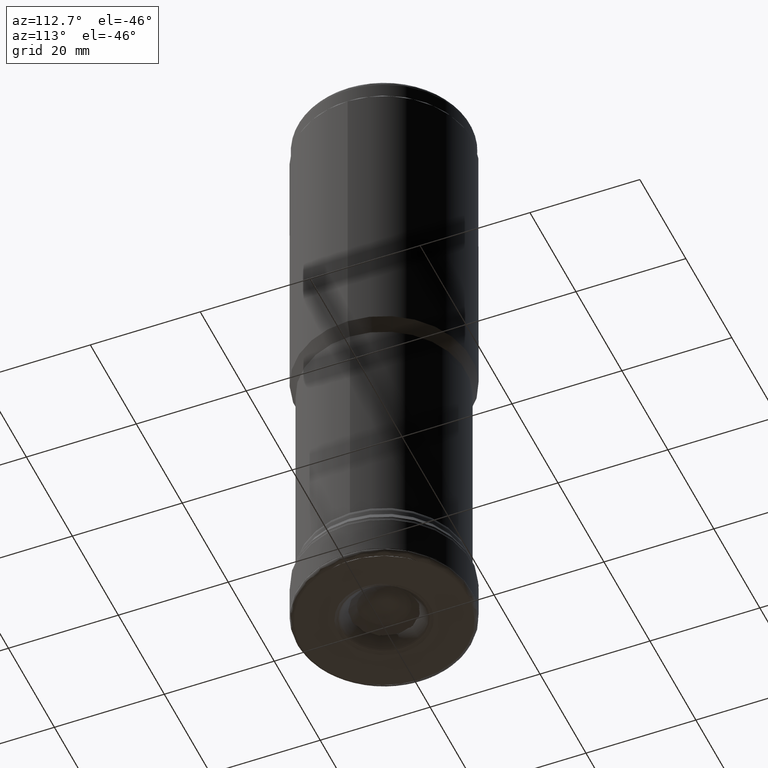
[diagram: clean part render]
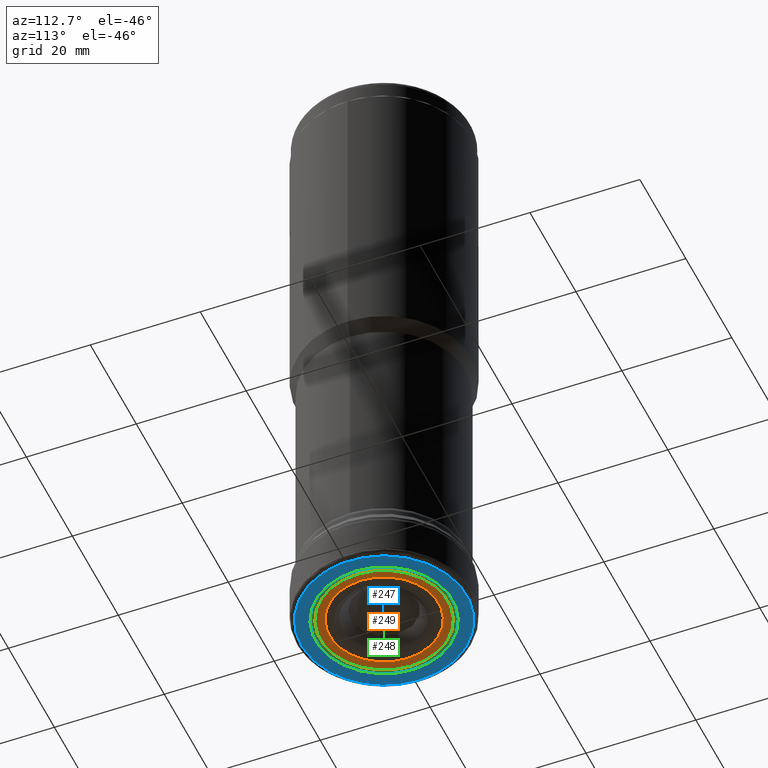
[diagram: same view with three faces highlighted in distinct colors, each labeled with its STEP entity id]
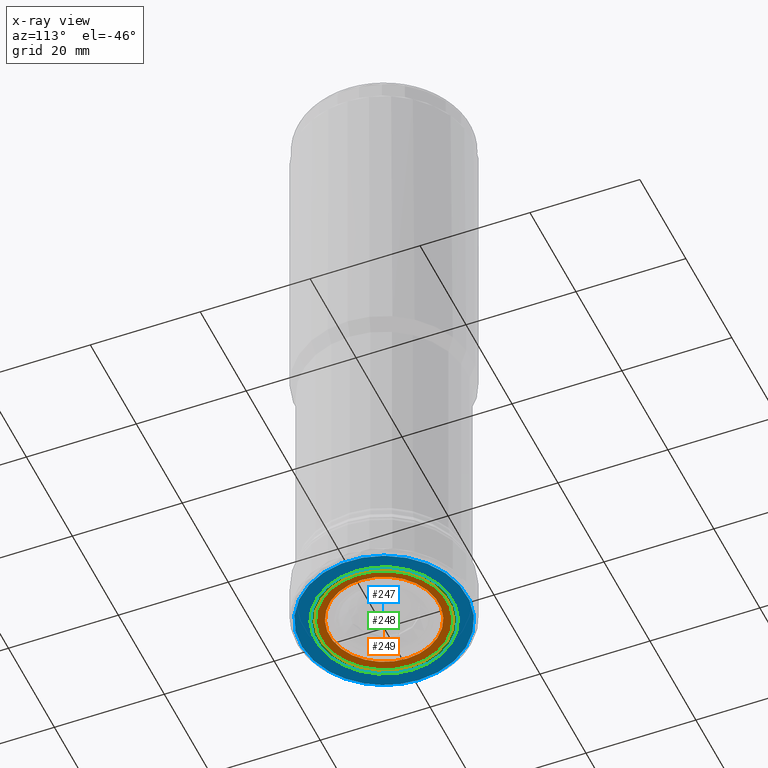
[diagram: x-ray of the same camera — body ghosted, the three highlighted faces saturated]
A machine part, auxiliary view with three faces highlighted in distinct colors.
The next image is the same camera in x-ray (body ghosted, the three faces saturated) — at least one of them is partly hidden behind the body in this view.
Their STEP definitions:

[orange] entity #249 — the highlighted face is a SurfaceOfRevolution surface.
#112=SURFACE_OF_REVOLUTION('',#952,#151);
#151=AXIS1_PLACEMENT('',#2190,#1158);
#249=ADVANCED_FACE('',(#353,#354),#112,.F.);
#353=FACE_BOUND('',#467,.T.);
#354=FACE_BOUND('',#468,.T.);
#467=EDGE_LOOP('',(#627));
#468=EDGE_LOOP('',(#628));
#627=ORIENTED_EDGE('',*,*,#813,.T.);
#628=ORIENTED_EDGE('',*,*,#814,.F.);
#733=VERTEX_POINT('',#2174);
#734=VERTEX_POINT('',#2183);
#813=EDGE_CURVE('',#733,#733,#862,.T.);
#814=EDGE_CURVE('',#734,#734,#863,.T.);
#862=CIRCLE('',#1026,11.6420137079246);
#863=CIRCLE('',#1027,9.94068885266798);
#952=B_SPLINE_CURVE_WITH_KNOTS('',5,(#2184,#2185,#2186,#2187,#2188,#2189),
 .UNSPECIFIED.,.F.,.F.,(6,6),(0.,1.),.UNSPECIFIED.);
#1026=AXIS2_PLACEMENT_3D('',#2173,#1153,#1154);
#1027=AXIS2_PLACEMENT_3D('',#2182,#1156,#1157);
#1153=DIRECTION('',(0.,0.,-1.));
#1154=DIRECTION('',(-1.,0.,0.));
#1156=DIRECTION('',(0.,0.,-1.));
#1157=DIRECTION('',(-1.,0.,0.));
#1158=DIRECTION('',(0.,0.,-1.));
#2173=CARTESIAN_POINT('',(0.,0.,0.0730724471815463));
#2174=CARTESIAN_POINT('',(-11.6420137079246,0.,0.0730724471815463));
#2182=CARTESIAN_POINT('',(0.,0.,0.257573474107855));
#2183=CARTESIAN_POINT('',(-9.94068885266798,0.,0.257573474107855));
#2184=CARTESIAN_POINT('',(-4.97034442633404,-8.60888907752723,0.257573474107855));
#2185=CARTESIAN_POINT('',(-5.14045022814163,-8.90352096892023,0.220184835990095));
#2186=CARTESIAN_POINT('',(-5.31057215064622,-9.19818078217947,0.183089528690482));
#2187=CARTESIAN_POINT('',(-5.48070684799947,-9.49286272212566,0.146228502387511));
#2188=CARTESIAN_POINT('',(-5.65085229849574,-9.78756328706189,0.10956555051383));
#2189=CARTESIAN_POINT('',(-5.82100685396234,-10.0822796222693,0.0730724471815463));
#2190=CARTESIAN_POINT('',(0.,0.,0.));

[blue] entity #247 — the highlighted face is a SurfaceOfRevolution surface.
#110=SURFACE_OF_REVOLUTION('',#950,#149);
#149=AXIS1_PLACEMENT('',#2172,#1152);
#247=ADVANCED_FACE('',(#349,#350),#110,.F.);
#349=FACE_BOUND('',#463,.T.);
#350=FACE_BOUND('',#464,.T.);
#463=EDGE_LOOP('',(#623));
#464=EDGE_LOOP('',(#624));
#623=ORIENTED_EDGE('',*,*,#811,.T.);
#624=ORIENTED_EDGE('',*,*,#812,.F.);
#731=VERTEX_POINT('',#2156);
#732=VERTEX_POINT('',#2165);
#811=EDGE_CURVE('',#731,#731,#860,.T.);
#812=EDGE_CURVE('',#732,#732,#861,.T.);
#860=CIRCLE('',#1024,15.090228059424);
#861=CIRCLE('',#1025,12.4554251770263);
#950=B_SPLINE_CURVE_WITH_KNOTS('',5,(#2166,#2167,#2168,#2169,#2170,#2171),
 .UNSPECIFIED.,.F.,.F.,(6,6),(0.,1.),.UNSPECIFIED.);
#1024=AXIS2_PLACEMENT_3D('',#2155,#1147,#1148);
#1025=AXIS2_PLACEMENT_3D('',#2164,#1150,#1151);
#1147=DIRECTION('',(0.,0.,-1.));
#1148=DIRECTION('',(-1.,0.,0.));
#1150=DIRECTION('',(0.,0.,-1.));
#1151=DIRECTION('',(-1.,0.,0.));
#1152=DIRECTION('',(0.,0.,-1.));
#2155=CARTESIAN_POINT('',(0.,0.,4.39446516387043E-14));
#2156=CARTESIAN_POINT('',(-15.090228059424,0.,4.39446516387043E-14));
#2164=CARTESIAN_POINT('',(0.,0.,0.0227797328222775));
#2165=CARTESIAN_POINT('',(-12.4554251770263,0.,0.0227797328222775));
#2166=CARTESIAN_POINT('',(-6.22771258851334,-10.7867146182413,0.0227797328223147));
#2167=CARTESIAN_POINT('',(-6.49116490826833,-11.2430274214288,0.0133574135511824));
#2168=CARTESIAN_POINT('',(-6.75463854865062,-11.699377153026,0.00631958713234938));
#2169=CARTESIAN_POINT('',(-7.01812620605018,-12.1557511628094,0.00171076251627194));
#2170=CARTESIAN_POINT('',(-7.28162063140434,-12.6121368950339,-0.00041692218495376));
#2171=CARTESIAN_POINT('',(-7.54511402971207,-13.0685208483619,4.39446516387043E-14));
#2172=CARTESIAN_POINT('',(0.,0.,0.));

[green] entity #248 — the highlighted face is a SurfaceOfRevolution surface.
#111=SURFACE_OF_REVOLUTION('',#951,#150);
#150=AXIS1_PLACEMENT('',#2181,#1155);
#248=ADVANCED_FACE('',(#351,#352),#111,.F.);
#351=FACE_BOUND('',#465,.T.);
#352=FACE_BOUND('',#466,.T.);
#465=EDGE_LOOP('',(#625));
#466=EDGE_LOOP('',(#626));
#625=ORIENTED_EDGE('',*,*,#812,.T.);
#626=ORIENTED_EDGE('',*,*,#813,.F.);
#732=VERTEX_POINT('',#2165);
#733=VERTEX_POINT('',#2174);
#812=EDGE_CURVE('',#732,#732,#861,.T.);
#813=EDGE_CURVE('',#733,#733,#862,.T.);
#861=CIRCLE('',#1025,12.4554251770263);
#862=CIRCLE('',#1026,11.6420137079246);
#951=B_SPLINE_CURVE_WITH_KNOTS('',5,(#2175,#2176,#2177,#2178,#2179,#2180),
 .UNSPECIFIED.,.F.,.F.,(6,6),(0.,1.),.UNSPECIFIED.);
#1025=AXIS2_PLACEMENT_3D('',#2164,#1150,#1151);
#1026=AXIS2_PLACEMENT_3D('',#2173,#1153,#1154);
#1150=DIRECTION('',(0.,0.,-1.));
#1151=DIRECTION('',(-1.,0.,0.));
#1153=DIRECTION('',(0.,0.,-1.));
#1154=DIRECTION('',(-1.,0.,0.));
#1155=DIRECTION('',(0.,0.,-1.));
#2164=CARTESIAN_POINT('',(0.,0.,0.0227797328222775));
#2165=CARTESIAN_POINT('',(-12.4554251770263,0.,0.0227797328222775));
#2173=CARTESIAN_POINT('',(0.,0.,0.0730724471815463));
#2174=CARTESIAN_POINT('',(-11.6420137079246,0.,0.0730724471815463));
#2175=CARTESIAN_POINT('',(-5.82100685396235,-10.0822796222693,0.0730724471815471));
#2176=CARTESIAN_POINT('',(-5.90205902480078,-10.2226661002253,0.0556891615116332));
#2177=CARTESIAN_POINT('',(-5.98334128951618,-10.3634511124666,0.0425273998634416));
#2178=CARTESIAN_POINT('',(-6.06470987382019,-10.5043856346211,0.0324989992072962));
#2179=CARTESIAN_POINT('',(-6.14619591145418,-10.6455235919106,0.02569516039523));
#2180=CARTESIAN_POINT('',(-6.2277125885132,-10.786714618241,0.0227797328222775));
#2181=CARTESIAN_POINT('',(0.,0.,0.));